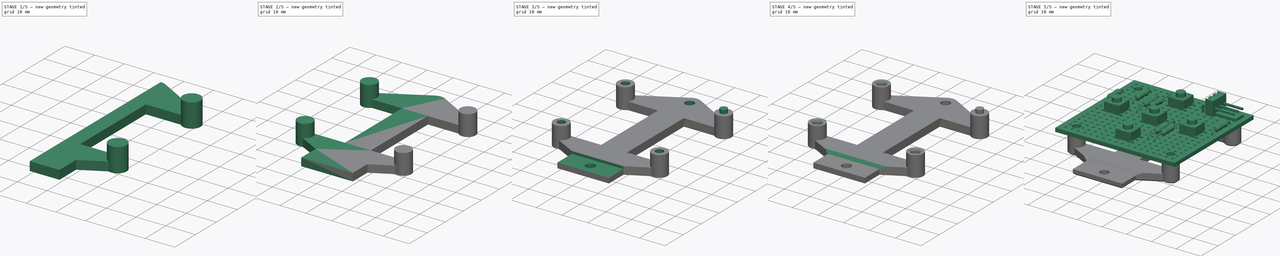
[diagram: build sequence overview — one tinted view per stage of 5, left to right]
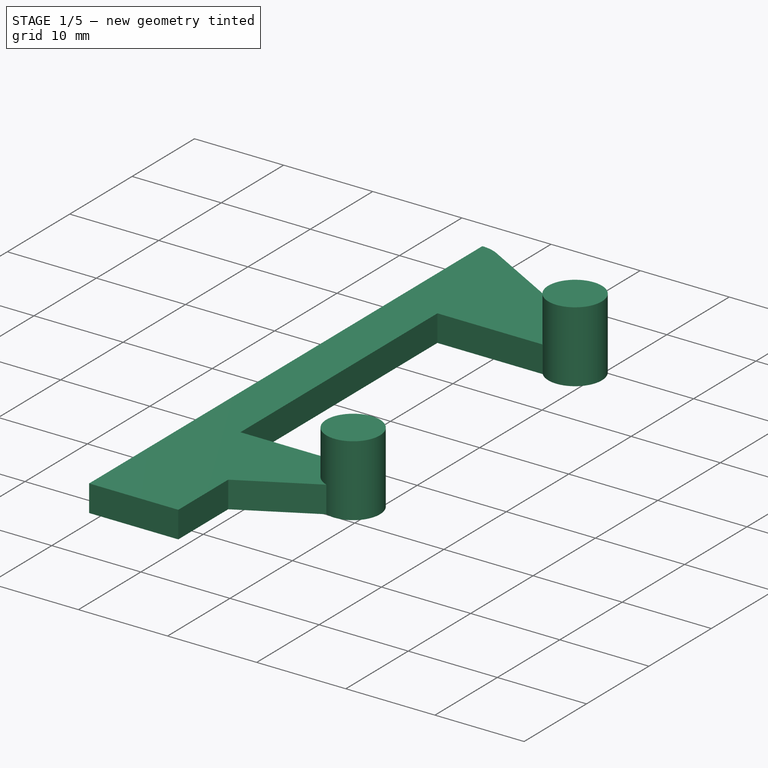
[diagram: stage 1 of 5 — iso view after this stage's code; geometry added in this stage tinted green]
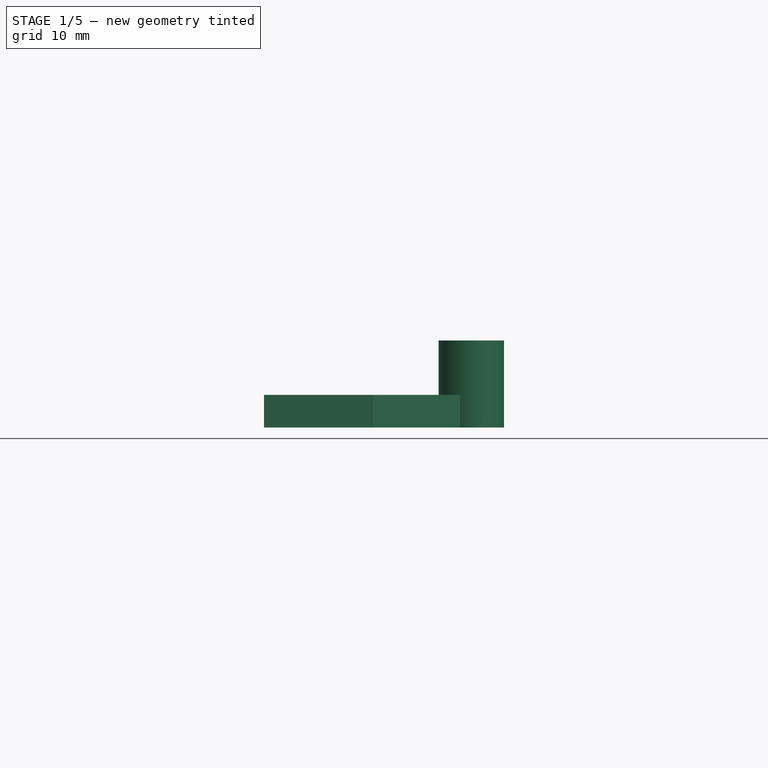
[diagram: stage 1 of 5 — front view after this stage's code; geometry added in this stage tinted green]
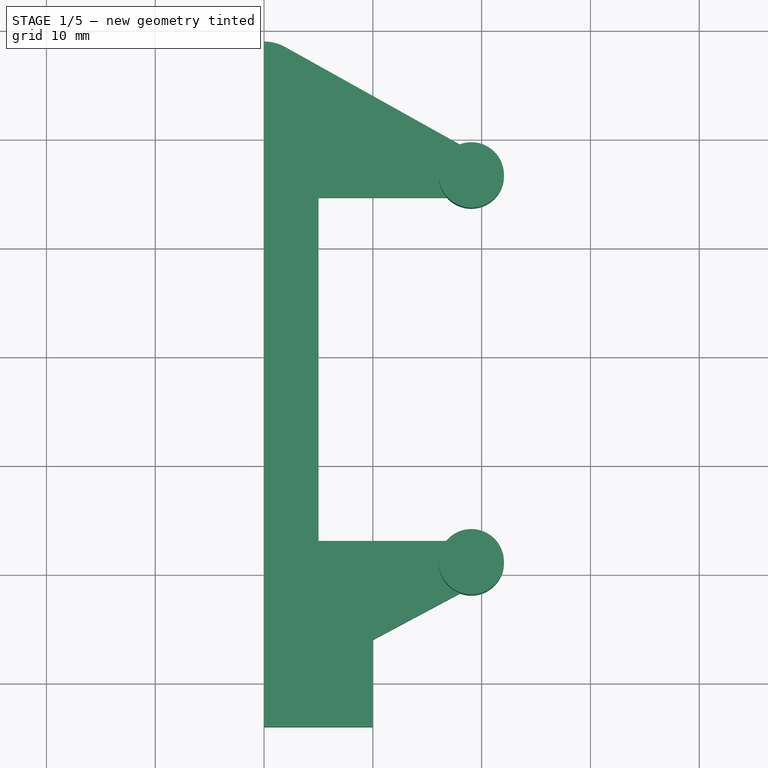
[diagram: stage 1 of 5 — top view after this stage's code; geometry added in this stage tinted green]
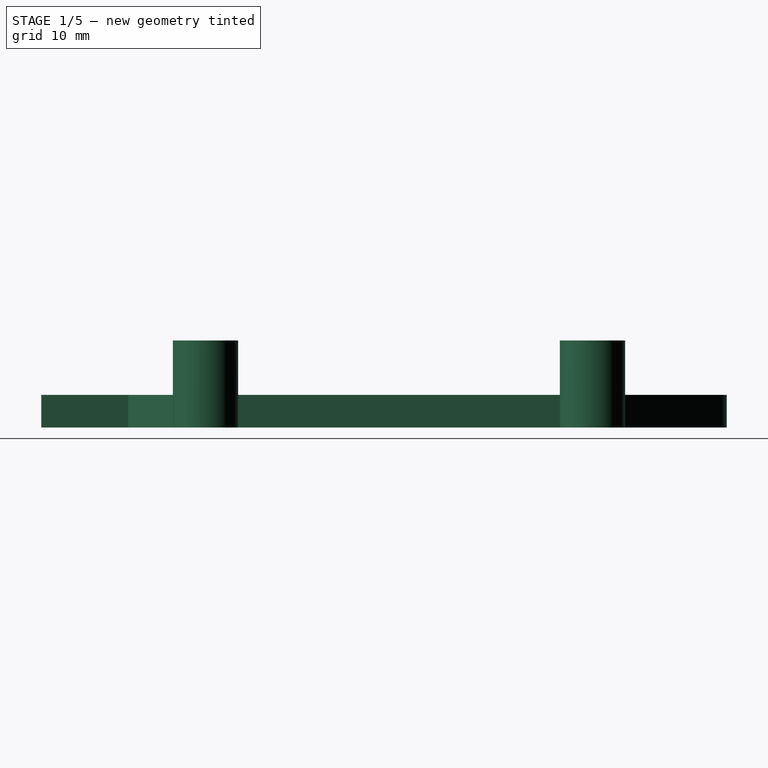
[diagram: stage 1 of 5 — right view after this stage's code; geometry added in this stage tinted green]
FCSTD DOCUMENT  (FreeCAD 0.14R3692 (Git))
Label: keypad-holder
License: The MIT License
LicenseURL: http://opensource.org/licenses/MIT
objects: Part::Feature×39, Sketcher::SketchObject×5, PartDesign::Pocket×3, PartDesign::Pad×2, Part::Cylinder×2, Part::MultiFuse×2, Part::FeaturePython×2, Part::Chamfer×2, Part::Mirroring×1, Part::Compound×1, App::DocumentObjectGroup×1, PartDesign::Draft×1
note: 65 computed .brp shape members not serialized (recipe doc carries the construction recipe); baked Part::Feature solids carry a one-line shape summary decoded from their .brp

FEATURE [Sketcher::SketchObject] Sketch  label="holder-sketch"
  sketch-geometry (16):
    g0: LineSegment [constr] StartX=10 StartY=54 StartZ=0 EndX=0 EndY=54 EndZ=0
    g1: LineSegment StartX=20.0246 StartY=48.4055 StartZ=0 EndX=1.94929 EndY=58.4929 EndZ=0
    g2: ArcOfCircle CenterX=0 CenterY=55 CenterZ=0 NormalX=0 NormalY=0 NormalZ=1 Radius=4 StartAngle=1.06178 EndAngle=1.5708
    g3: ArcOfCircle CenterX=19.05 CenterY=46.6591 CenterZ=0 NormalX=0 NormalY=0 NormalZ=1 Radius=2 StartAngle=4.71239 EndAngle=7.34496
    g4: ArcOfCircle CenterX=19.05 CenterY=11.0991 CenterZ=0 NormalX=0 NormalY=0 NormalZ=1 Radius=2 StartAngle=5.20279 EndAngle=7.85398
    g5: LineSegment StartX=19.992 StartY=9.33478 StartZ=0 EndX=10 EndY=4 EndZ=0
    g6: LineSegment StartX=10 StartY=4 StartZ=0 EndX=10 EndY=-4 EndZ=0
    g7: LineSegment StartX=10 StartY=-4 StartZ=0 EndX=0 EndY=-4 EndZ=0
    g8: LineSegment StartX=19.05 StartY=44.6591 StartZ=0 EndX=5 EndY=44.6591 EndZ=0
    g9: LineSegment StartX=5 StartY=44.6591 StartZ=0 EndX=5 EndY=13.0991 EndZ=0
    g10: LineSegment StartX=5 StartY=13.0991 StartZ=0 EndX=19.05 EndY=13.0991 EndZ=0
    g11: LineSegment [constr] StartX=-19.05 StartY=46.6591 StartZ=0 EndX=19.05 EndY=46.6591 EndZ=0
    g12: LineSegment [constr] StartX=19.05 StartY=46.6591 StartZ=0 EndX=19.05 EndY=11.0991 EndZ=0
    g13: LineSegment [constr] StartX=19.05 StartY=11.0991 StartZ=0 EndX=-19.05 EndY=11.0991 EndZ=0
    g14: LineSegment [constr] StartX=-19.05 StartY=11.0991 StartZ=0 EndX=-19.05 EndY=46.6591 EndZ=0
    g15: LineSegment StartX=0 StartY=-4 StartZ=0 EndX=0 EndY=59 EndZ=0
  constraints (49):
    c: Horizontal(g0)
    c: DistanceX(g0) = -10
    c: Tangent(g1,g2)
    c: PointOnObject(g2,g-2)
    c: Radius(g2) = 4
    c: DistanceY(g2,g0) = -1
    c: DistanceY(g-1,g2) = 55
    c: Radius(g3) = 2
    c: PointOnObject(g0,g1)
    c: Radius(g4) = 2
    c: Coincident(g5,g6)
    c: Coincident(g6,g7)
    c: Vertical(g6)
    c: Horizontal(g7)
    c: DistanceX(g7) = -10
    c: DistanceY(g-1,g6) = -4
    c: DistanceY(g6) = -8
    c: Coincident(g8,g9)
    c: Coincident(g9,g10)
    c: Coincident(g10,g4)
    c: Coincident(g5,g4)
    c: Coincident(g1,g3)
    c: Coincident(g8,g3)
    c: Tangent(g4,g10)
    c: Tangent(g4,g5)
    c: Coincident(g11,g3)
    c: Horizontal(g11)
    c: Coincident(g12,g3)
    c: Coincident(g12,g4)
    c: Vertical(g12)
    c: Coincident(g12,g13)
    c: Horizontal(g13)
    c: Coincident(g13,g14)
    c: Vertical(g14)
    c: DistanceX(g13) = -38.1
    c: DistanceY(g12) = -35.56
    c: Vertical(g9)
    c: Horizontal(g10)
    c: Horizontal(g8)
    c: Tangent(g3,g8)
    c: Tangent(g1,g3)
    c: Coincident(g11,g14)
    c: PointOnObject(g7,g-2)
    c: Coincident(g15,g7)
    c: Coincident(g15,g2)
    c: Vertical(g15)
    c: PointOnObject(g0,g-2)
    c: Symmetric(g4,g13,g-2)
    c: DistanceX(g-1,g9) = 5
FEATURE [PartDesign::Pad] Pad  label="holder-pad"
  Length = 3
  Length2 = 100
  Sketch = -> Sketch
  Type = 0
FEATURE [Part::Cylinder] Cylinder  label="front-left-cylinder"
  Angle = 360
  Height = 8
  Placement = pos=(19.05,11.0991,0) rot=(0,0,1;0rad)
  Radius = 3
FEATURE [Part::Cylinder] Cylinder003  label="rear-left-cylinder"
  Angle = 360
  Height = 8
  Placement = pos=(19.05,46.6591,0) rot=(0,0,1;0rad)
  Radius = 3
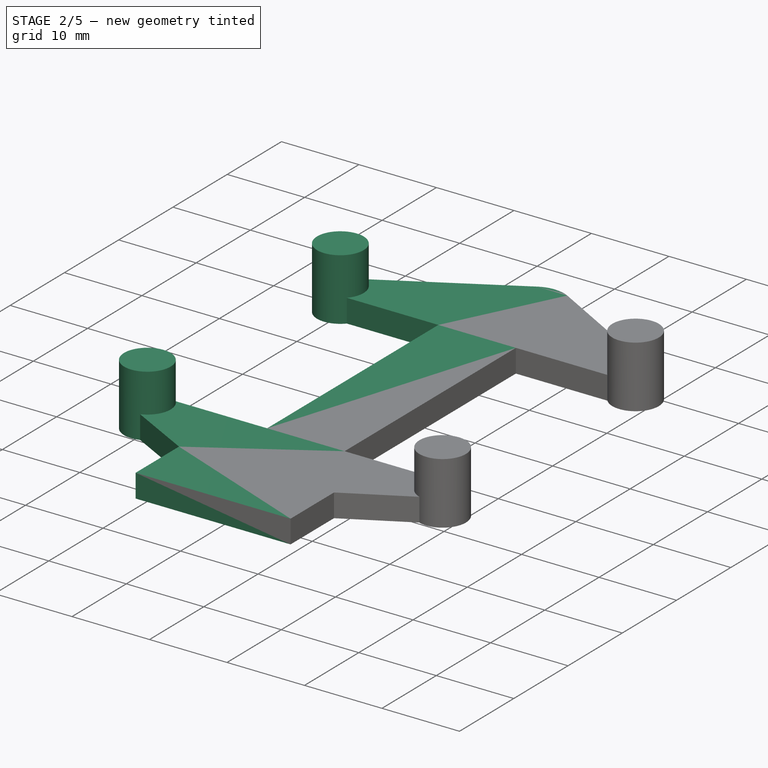
[diagram: stage 2 of 5 — iso view after this stage's code; geometry added in this stage tinted green]
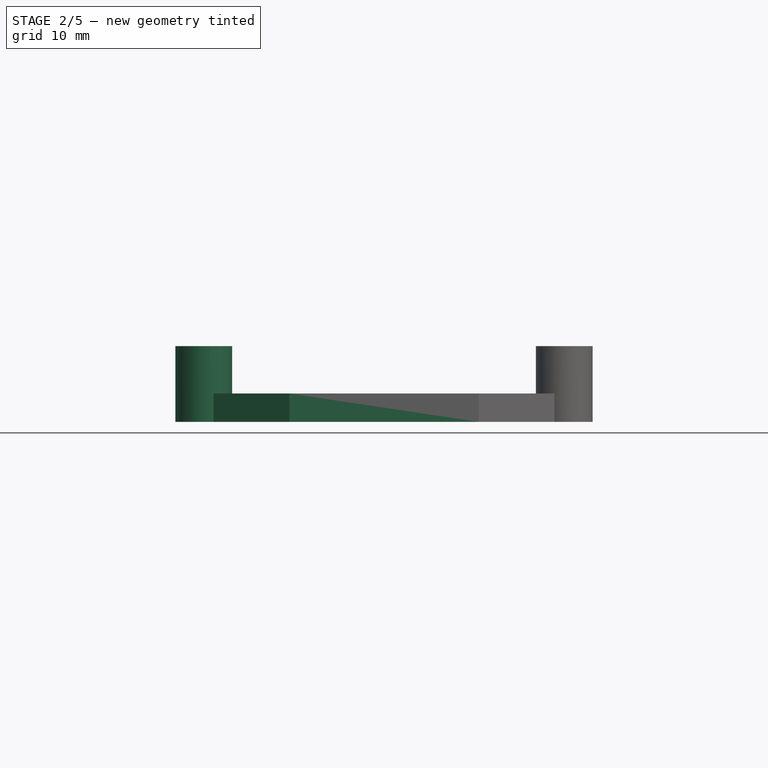
[diagram: stage 2 of 5 — front view after this stage's code; geometry added in this stage tinted green]
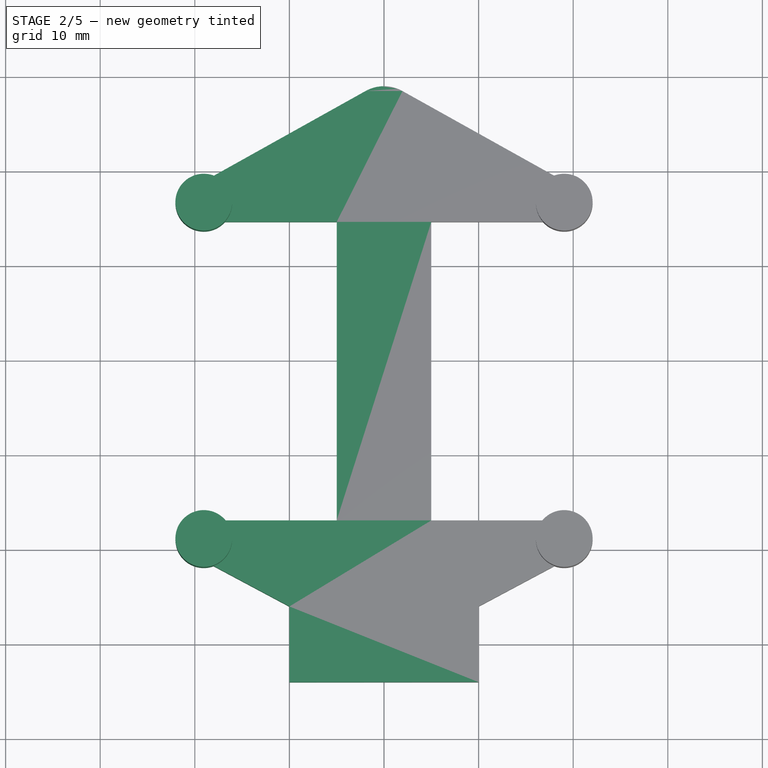
[diagram: stage 2 of 5 — top view after this stage's code; geometry added in this stage tinted green]
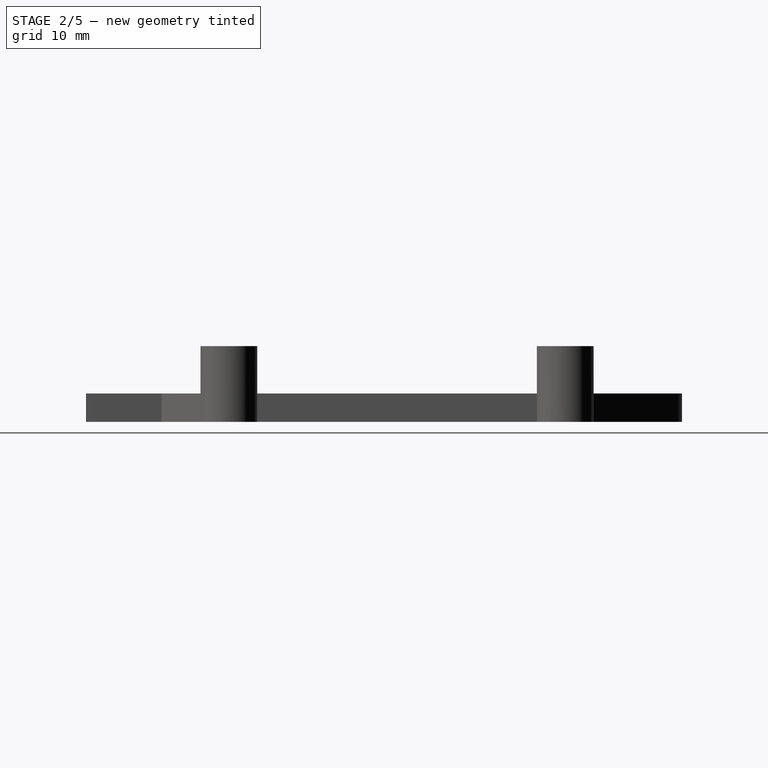
[diagram: stage 2 of 5 — right view after this stage's code; geometry added in this stage tinted green]
FEATURE [Part::MultiFuse] Fusion002  label="holder-cylinder-fusion"
  Shapes = -> [Cylinder,Cylinder003,Pad]
FEATURE [Part::Mirroring] Part__Mirroring  label="holder-cylinder-fusion-mirror"
  Base = (0,0,0)
  Normal = (1,0,0)
  Source = -> Fusion002
FEATURE [Part::MultiFuse] Fusion  label="holder-fusion"
  Shapes = -> [Part__Mirroring,Fusion002]
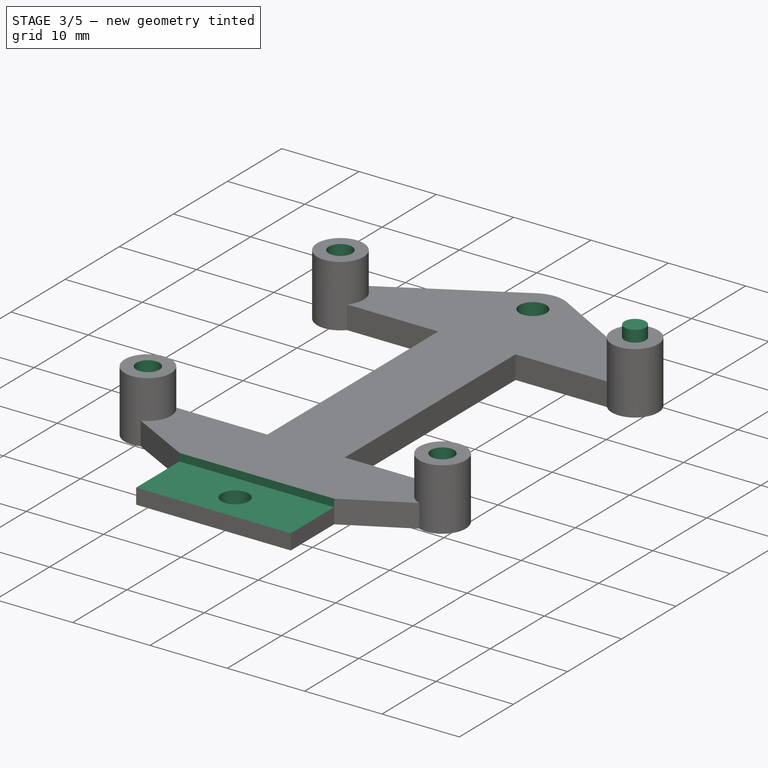
[diagram: stage 3 of 5 — iso view after this stage's code; geometry added in this stage tinted green]
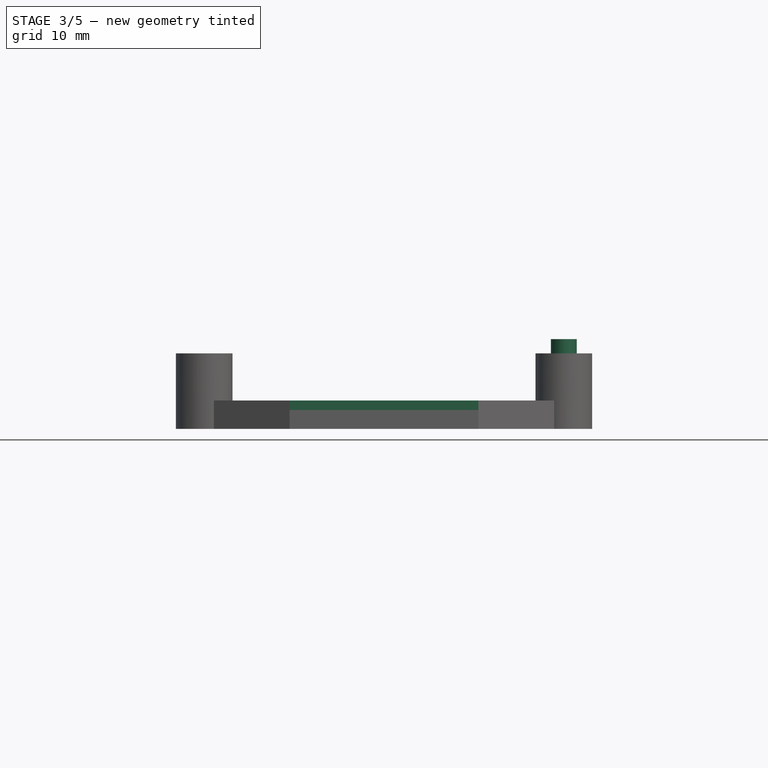
[diagram: stage 3 of 5 — front view after this stage's code; geometry added in this stage tinted green]
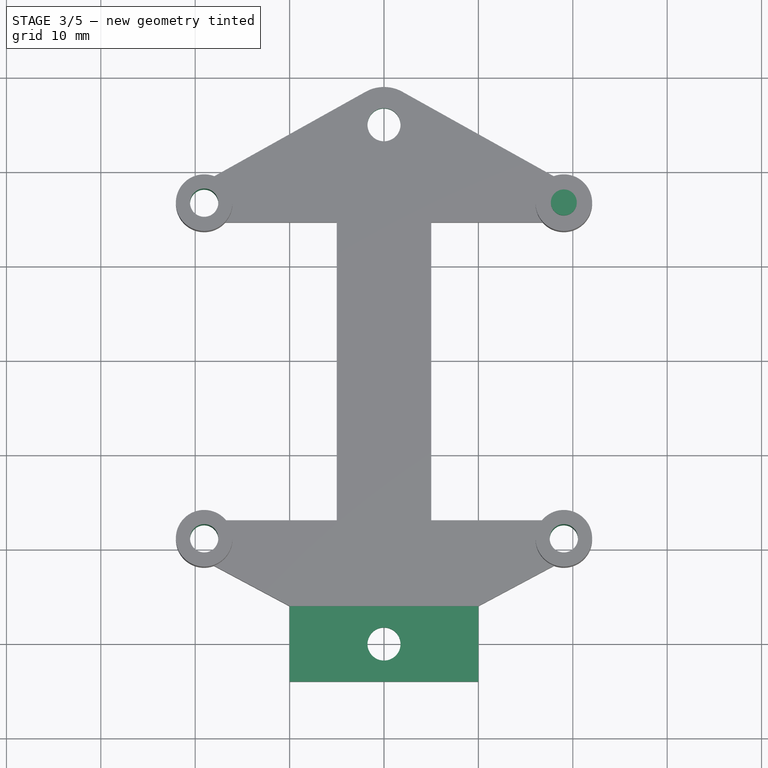
[diagram: stage 3 of 5 — top view after this stage's code; geometry added in this stage tinted green]
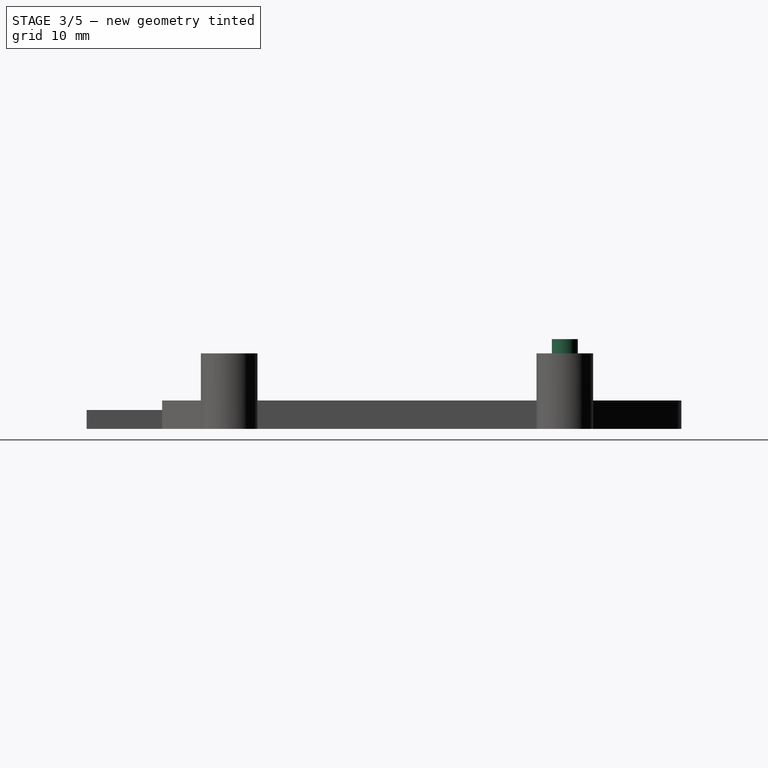
[diagram: stage 3 of 5 — right view after this stage's code; geometry added in this stage tinted green]
FEATURE [Sketcher::SketchObject] Sketch001  label="holder-screw-holes-sketch"
  Placement = pos=(0,0,0) rot=(1,0,0;3.14159rad)
  Support = -> Fusion [Face22]
  sketch-geometry (2):
    g0: Circle CenterX=0 CenterY=0 CenterZ=0 NormalX=0 NormalY=0 NormalZ=1 Radius=1.75
    g1: Circle CenterX=0 CenterY=-55 CenterZ=0 NormalX=0 NormalY=0 NormalZ=1 Radius=1.75
  constraints (5):
    c: Coincident(g0,g-1)
    c: PointOnObject(g1,g-2)
    c: Radius(g1) = 1.75
    c: Radius(g0) = 1.75
    c: DistanceY(g-1,g1) = -55
FEATURE [PartDesign::Pocket] Pocket  label="holder-screw-holes-pocket"
  Length = 5
  Sketch = -> Sketch001
  Type = 1
FEATURE [Sketcher::SketchObject] Sketch003  label="keypad-screw-holes-sketch"
  Placement = pos=(0,0,0) rot=(1,0,0;3.14159rad)
  Support = -> Pocket [Face6]
  sketch-geometry (7):
    g0: LineSegment [constr] StartX=19.05 StartY=-11.0991 StartZ=0 EndX=-19.05 EndY=-11.0991 EndZ=0
    g1: LineSegment [constr] StartX=-19.05 StartY=-11.0991 StartZ=0 EndX=-19.05 EndY=-46.6591 EndZ=0
    g2: LineSegment [constr] StartX=-19.05 StartY=-46.6591 StartZ=0 EndX=19.05 EndY=-46.6591 EndZ=0
    g3: LineSegment [constr] StartX=19.05 StartY=-46.6591 StartZ=0 EndX=19.05 EndY=-11.0991 EndZ=0
    g4: Circle CenterX=19.05 CenterY=-11.0991 CenterZ=0 NormalX=0 NormalY=0 NormalZ=1 Radius=1.5
    g5: Circle CenterX=-19.05 CenterY=-11.0991 CenterZ=0 NormalX=0 NormalY=0 NormalZ=1 Radius=1.5
    g6: Circle CenterX=-19.05 CenterY=-46.6591 CenterZ=0 NormalX=0 NormalY=0 NormalZ=1 Radius=1.5
FEATURE [PartDesign::Pocket] Pocket002  label="keypad-screw-holes-pocket"
  Length = 5
  Sketch = -> Sketch003
  Type = 1
FEATURE [Sketcher::SketchObject] Sketch004  label="keypad-screw-lock-sketch"
  Placement = pos=(0,0,8) rot=(0,0,1;0rad)
  Support = -> Pocket002 [Face29]
  sketch-geometry (1):
    g0: Circle CenterX=19.05 CenterY=46.6591 CenterZ=0 NormalX=0 NormalY=0 NormalZ=1 Radius=1.375
  constraints (1):
    c: Radius(g0) = 1.375
FEATURE [PartDesign::Pad] Pad001  label="keypad-screw-lock-pad"
  Length = 1.5
  Length2 = 100
  Sketch = -> Sketch004
  Type = 0
FEATURE [Sketcher::SketchObject] Sketch002  label="front-recess-sketch"
  Placement = pos=(0,0,3) rot=(0,0,1;0rad)
  Support = -> Pad001 [Face3]
  sketch-geometry (4):
    g0: LineSegment StartX=-10 StartY=4 StartZ=0 EndX=10 EndY=4 EndZ=0
    g1: LineSegment StartX=10 StartY=4 StartZ=0 EndX=10 EndY=-4 EndZ=0
    g2: LineSegment StartX=10 StartY=-4 StartZ=0 EndX=-10 EndY=-4 EndZ=0
    g3: LineSegment StartX=-10 StartY=-4 StartZ=0 EndX=-10 EndY=4 EndZ=0
  constraints (11):
    c: Coincident(g0,g1)
    c: Coincident(g1,g2)
    c: Coincident(g2,g3)
    c: Coincident(g3,g0)
    c: Horizontal(g0)
    c: Horizontal(g2)
    c: Vertical(g1)
    c: Vertical(g3)
    c: Symmetric(g2,g0,g-1)
    c: DistanceY(g1) = -8
    c: DistanceX(g2) = -20
FEATURE [PartDesign::Pocket] Pocket001  label="front-recess-pocket"
  Length = 1
  Sketch = -> Sketch002
  Type = 0
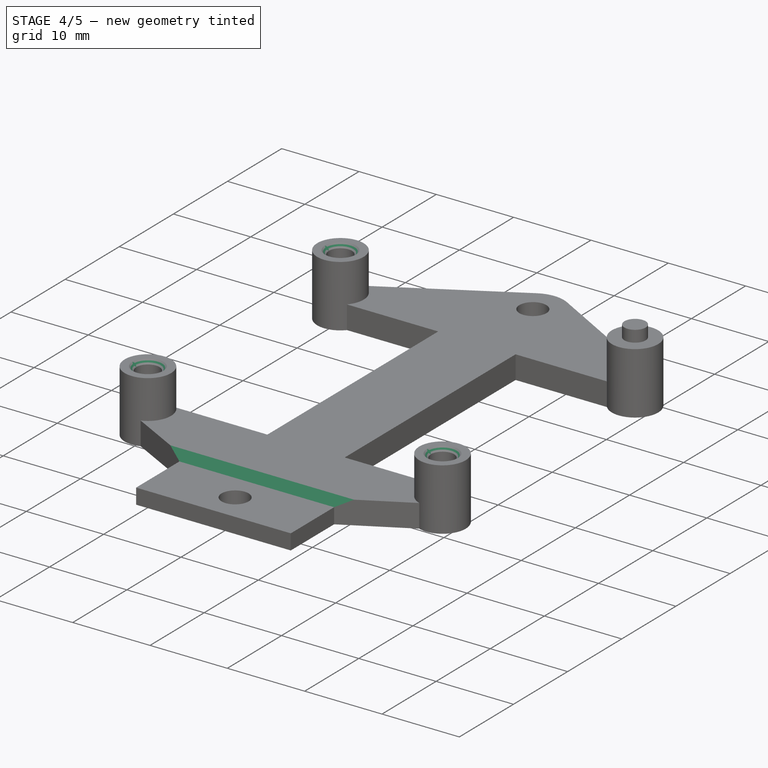
[diagram: stage 4 of 5 — iso view after this stage's code; geometry added in this stage tinted green]
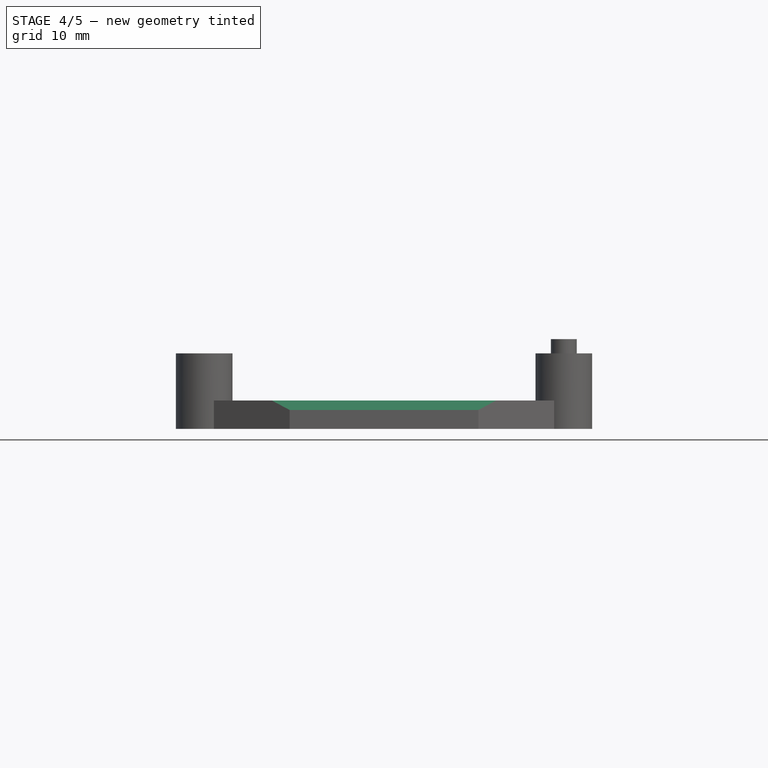
[diagram: stage 4 of 5 — front view after this stage's code; geometry added in this stage tinted green]
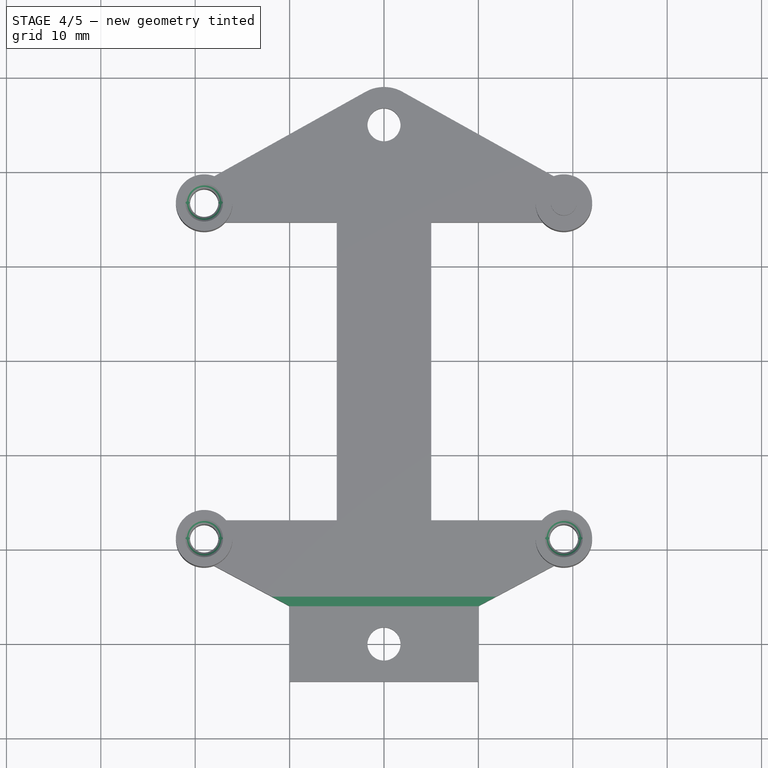
[diagram: stage 4 of 5 — top view after this stage's code; geometry added in this stage tinted green]
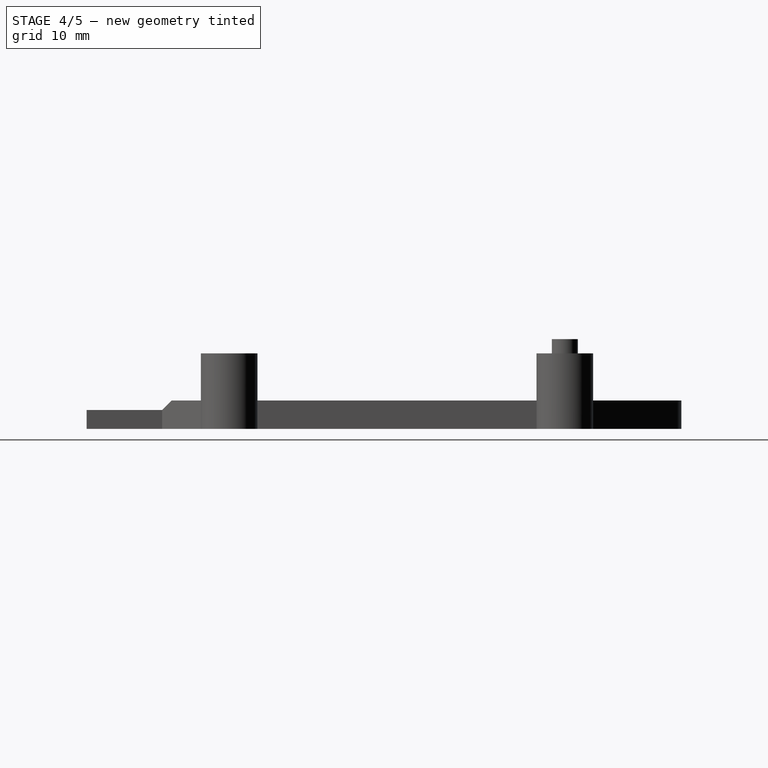
[diagram: stage 4 of 5 — right view after this stage's code; geometry added in this stage tinted green]
FEATURE [App::DocumentObjectGroup] Group  label="components"
  Group = -> [Compound]
FEATURE [PartDesign::Draft] Draft  label="front-recess-draft"
  Angle = 45
  Base = -> Pocket001 [Face8]
  NeutralPlane = -> Pocket001 [Face28]
FEATURE [Part::FeaturePython] Clone  label="keypad-holder"  # Draft clone (typed FeaturePython)
  Objects = -> [Draft]
  Scale = (1,1,1)
FEATURE [Part::Chamfer] Chamfer  label="screw-chamfer"
  Base = -> Clone
  Edges = 6 edges r=0.5: [Edge59,Edge60,Edge91,Edge92,Edge95,Edge96]
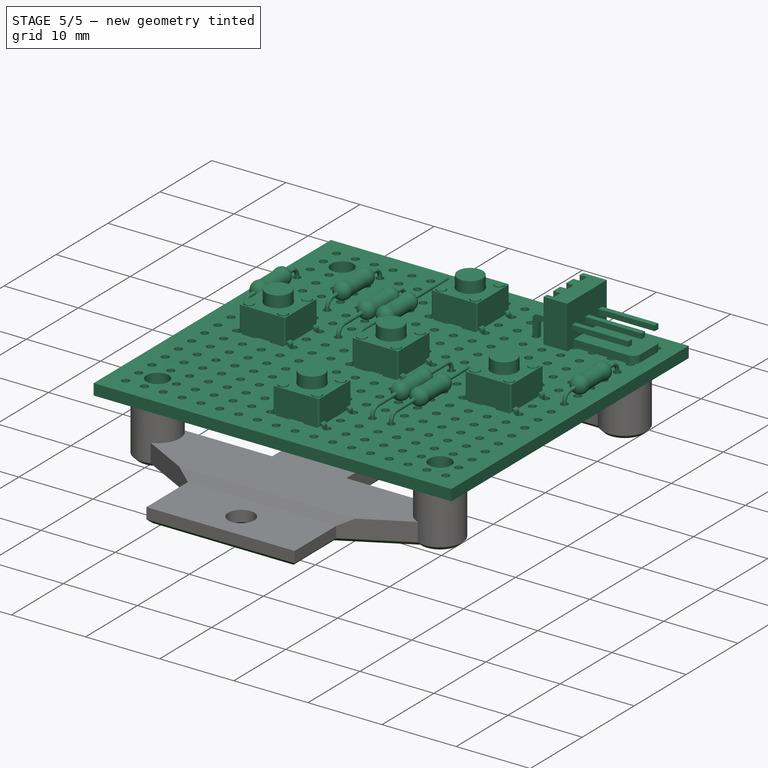
[diagram: stage 5 of 5 — iso view after this stage's code; geometry added in this stage tinted green]
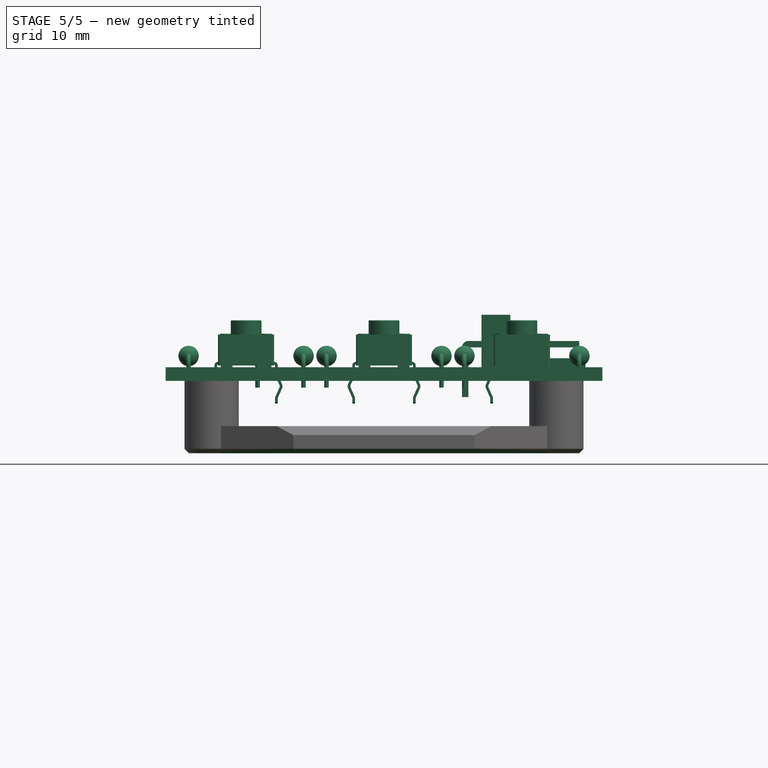
[diagram: stage 5 of 5 — front view after this stage's code; geometry added in this stage tinted green]
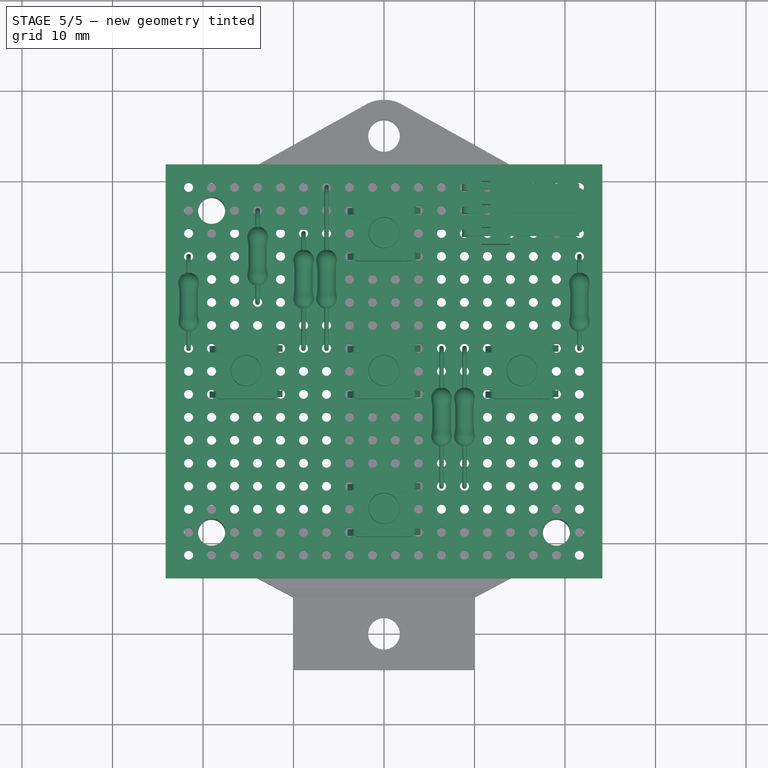
[diagram: stage 5 of 5 — top view after this stage's code; geometry added in this stage tinted green]
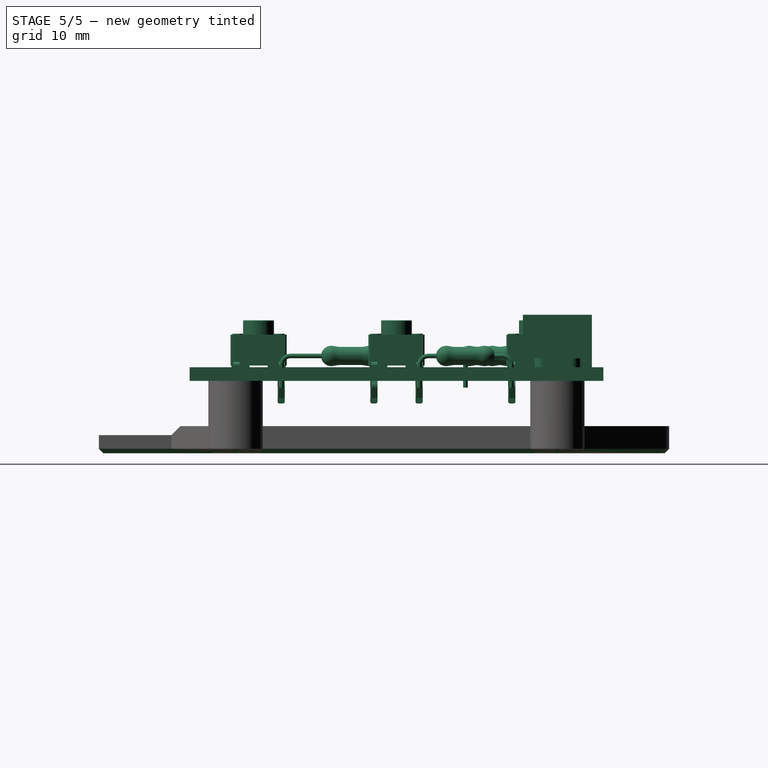
[diagram: stage 5 of 5 — right view after this stage's code; geometry added in this stage tinted green]
FEATURE [Part::Feature] Part__Feature  label="R1"
  shape: bbox 2.25 x 18.49 x 4.625 mm, 14 faces (baked)
FEATURE [Part::Feature] Part__Feature001  label="R2"
  shape: bbox 2.25 x 15.95 x 4.625 mm, 14 faces (baked)
FEATURE [Part::Feature] Part__Feature002  label="R3"
  shape: bbox 2.25 x 15.95 x 4.625 mm, 14 faces (baked)
FEATURE [Part::Feature] Part__Feature003  label="R4"
  shape: bbox 2.25 x 10.87 x 4.625 mm, 14 faces (baked)
FEATURE [Part::Feature] Part__Feature004  label="R5"
  shape: bbox 2.25 x 10.87 x 4.625 mm, 14 faces (baked)
FEATURE [Part::Feature] Part__Feature005  label="R6"
  shape: bbox 2.25 x 13.41 x 4.625 mm, 14 faces (baked)
FEATURE [Part::Feature] Part__Feature006  label="R7"
  shape: bbox 2.25 x 10.87 x 4.625 mm, 14 faces (baked)
FEATURE [Part::Feature] Part__Feature007  label="connector"
  shape: bbox 13.65 x 7.62 x 9.1 mm, 63 faces (baked)
FEATURE [Part::Feature] Part__Feature008  label="pushbutton-mini-001"
  shape: bbox 6.2 x 6.2 x 5.2 mm, 41 faces (baked)
FEATURE [Part::Feature] Part__Feature009  label="pushbutton-mini-002"
  shape: bbox 0.922 x 0.7 x 4.6 mm, 20 faces (baked)
FEATURE [Part::Feature] Part__Feature010  label="pushbutton-mini-003"
  shape: bbox 0.922 x 0.7 x 4.6 mm, 20 faces (baked)
FEATURE [Part::Feature] Part__Feature011  label="pushbutton-mini-004"
  shape: bbox 0.922 x 0.7 x 4.6 mm, 20 faces (baked)
FEATURE [Part::Feature] Part__Feature012  label="pushbutton-mini-005"
  shape: bbox 0.922 x 0.7 x 4.6 mm, 20 faces (baked)
FEATURE [Part::Feature] Part__Feature013  label="pushbutton-mini-006"
  shape: bbox 6.2 x 6.2 x 0.2 mm, 15 faces (baked)
FEATURE [Part::Feature] Part__Feature014  label="pushbutton-mini-007"
  shape: bbox 6.2 x 6.2 x 5.2 mm, 41 faces (baked)
FEATURE [Part::Feature] Part__Feature015  label="pushbutton-mini-008"
  shape: bbox 0.922 x 0.7 x 4.6 mm, 20 faces (baked)
FEATURE [Part::Feature] Part__Feature016  label="pushbutton-mini-009"
  shape: bbox 0.922 x 0.7 x 4.6 mm, 20 faces (baked)
FEATURE [Part::Feature] Part__Feature017  label="pushbutton-mini-010"
  shape: bbox 0.922 x 0.7 x 4.6 mm, 20 faces (baked)
FEATURE [Part::Feature] Part__Feature018  label="pushbutton-mini-011"
  shape: bbox 0.922 x 0.7 x 4.6 mm, 20 faces (baked)
FEATURE [Part::Feature] Part__Feature019  label="pushbutton-mini-012"
  shape: bbox 6.2 x 6.2 x 0.2 mm, 15 faces (baked)
FEATURE [Part::Feature] Part__Feature020  label="pushbutton-mini-013"
  shape: bbox 6.2 x 6.2 x 5.2 mm, 41 faces (baked)
FEATURE [Part::Feature] Part__Feature021  label="pushbutton-mini-014"
  shape: bbox 0.922 x 0.7 x 4.6 mm, 20 faces (baked)
FEATURE [Part::Feature] Part__Feature022  label="pushbutton-mini-015"
  shape: bbox 0.922 x 0.7 x 4.6 mm, 20 faces (baked)
FEATURE [Part::Feature] Part__Feature023  label="pushbutton-mini-016"
  shape: bbox 0.922 x 0.7 x 4.6 mm, 20 faces (baked)
FEATURE [Part::Feature] Part__Feature024  label="pushbutton-mini-017"
  shape: bbox 0.922 x 0.7 x 4.6 mm, 20 faces (baked)
FEATURE [Part::Feature] Part__Feature025  label="pushbutton-mini-018"
  shape: bbox 6.2 x 6.2 x 0.2 mm, 15 faces (baked)
FEATURE [Part::Feature] Part__Feature026  label="pushbutton-mini-019"
  shape: bbox 6.2 x 6.2 x 5.2 mm, 41 faces (baked)
FEATURE [Part::Feature] Part__Feature027  label="pushbutton-mini-020"
  shape: bbox 0.922 x 0.7 x 4.6 mm, 20 faces (baked)
FEATURE [Part::Feature] Part__Feature028  label="pushbutton-mini-021"
  shape: bbox 0.922 x 0.7 x 4.6 mm, 20 faces (baked)
FEATURE [Part::Feature] Part__Feature029  label="pushbutton-mini-022"
  shape: bbox 0.922 x 0.7 x 4.6 mm, 20 faces (baked)
FEATURE [Part::Feature] Part__Feature030  label="pushbutton-mini-023"
  shape: bbox 0.922 x 0.7 x 4.6 mm, 20 faces (baked)
FEATURE [Part::Feature] Part__Feature031  label="pushbutton-mini-024"
  shape: bbox 6.2 x 6.2 x 0.2 mm, 15 faces (baked)
FEATURE [Part::Feature] Part__Feature032  label="pushbutton-mini-025"
  shape: bbox 6.2 x 6.2 x 5.2 mm, 41 faces (baked)
FEATURE [Part::Feature] Part__Feature033  label="pushbutton-mini-026"
  shape: bbox 0.922 x 0.7 x 4.6 mm, 20 faces (baked)
FEATURE [Part::Feature] Part__Feature034  label="pushbutton-mini-027"
  shape: bbox 0.922 x 0.7 x 4.6 mm, 20 faces (baked)
FEATURE [Part::Feature] Part__Feature035  label="pushbutton-mini-028"
  shape: bbox 0.922 x 0.7 x 4.6 mm, 20 faces (baked)
FEATURE [Part::Feature] Part__Feature036  label="pushbutton-mini-029"
  shape: bbox 0.922 x 0.7 x 4.6 mm, 20 faces (baked)
FEATURE [Part::Feature] Part__Feature037  label="pushbutton-mini-030"
  shape: bbox 6.2 x 6.2 x 0.2 mm, 15 faces (baked)
FEATURE [Part::Feature] Part__Feature038  label="perfboard"
  shape: bbox 48.26 x 45.72 x 1.5 mm, 312 faces (baked)
FEATURE [Part::Compound] Compound  label="keypad"
  Links = -> [Part__Feature,Part__Feature008,Part__Feature020,Part__Feature016,Part__Feature025,Part__Feature006,Part__Feature018,Part__Feature011,Part__Feature030,Part__Feature032,Part__Feature035,Part__Feature028,Part__Feature013,Part__Feature010,Part__Feature004,Part__Feature031,Part__Feature026,Part__Feature017,Part__Feature005,Part__Feature038,Part__Feature036,Part__Feature015,Part__Feature009,+16 more]
  Placement = pos=(19.05,46.6591,8) rot=(0,0,1;3.14159rad)
FEATURE [Part::Chamfer] Chamfer001  label="printing-chamfer"
  Base = -> Chamfer
  Edges = 28 edges r=0.5: [Edge12,Edge14,Edge16,Edge17,Edge42,Edge43,Edge44,Edge45,Edge46,Edge47,Edge48,Edge49,Edge50,Edge51,Edge52,Edge53,Edge54,Edge55,Edge56,Edge57,Edge58,Edge59,Edge60,Edge61,Edge62,Edge63,Edge64,Edge65]
FEATURE [Part::FeaturePython] Clone001  label="keypad-holder (printing)"  # Draft clone (typed FeaturePython)
  Objects = -> [Chamfer001]
  Scale = (1,1,1)
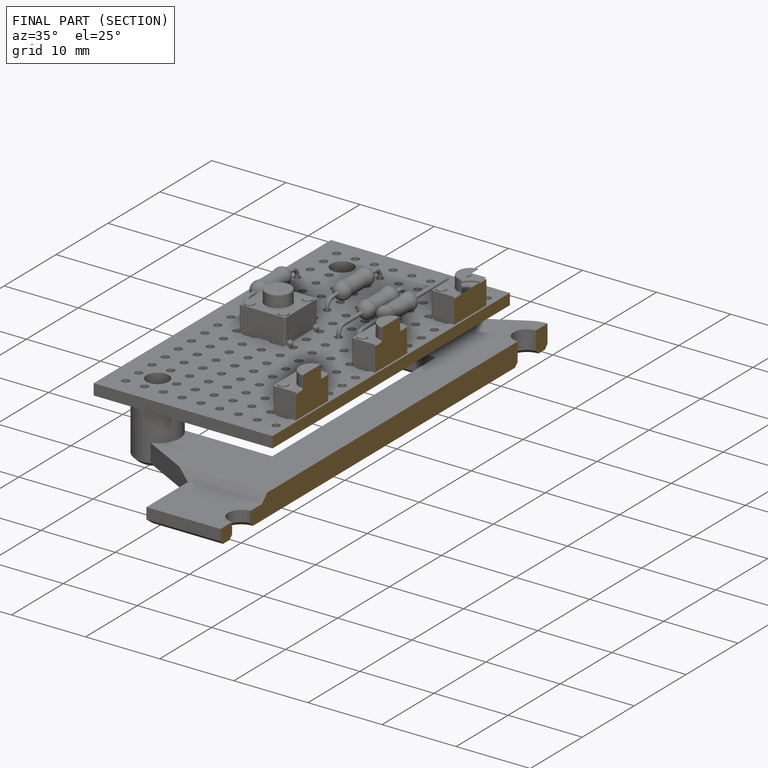
[diagram: finished part — half-section view (interior)]
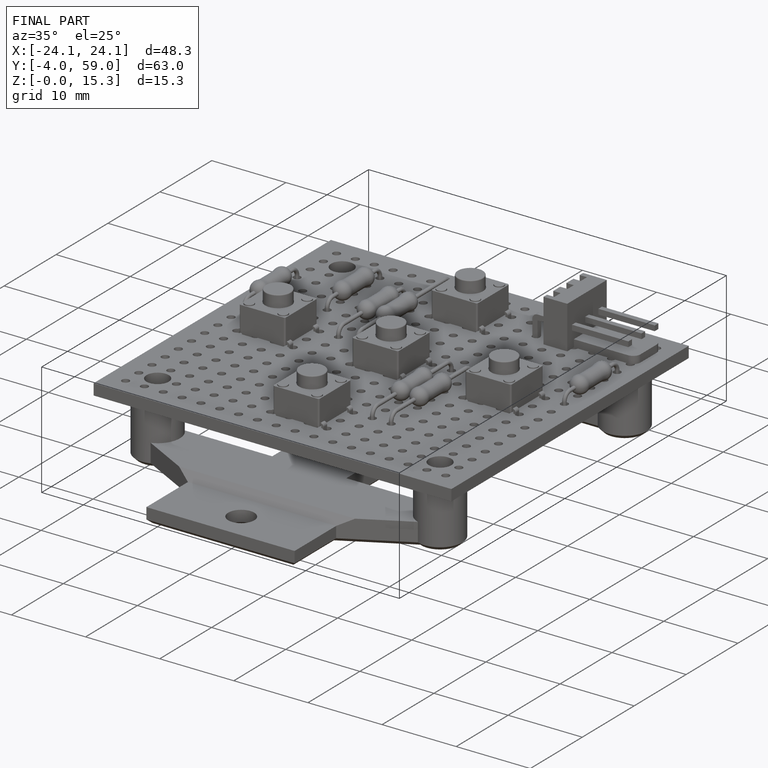
[diagram: finished part — iso view with bounding-box wireframe]
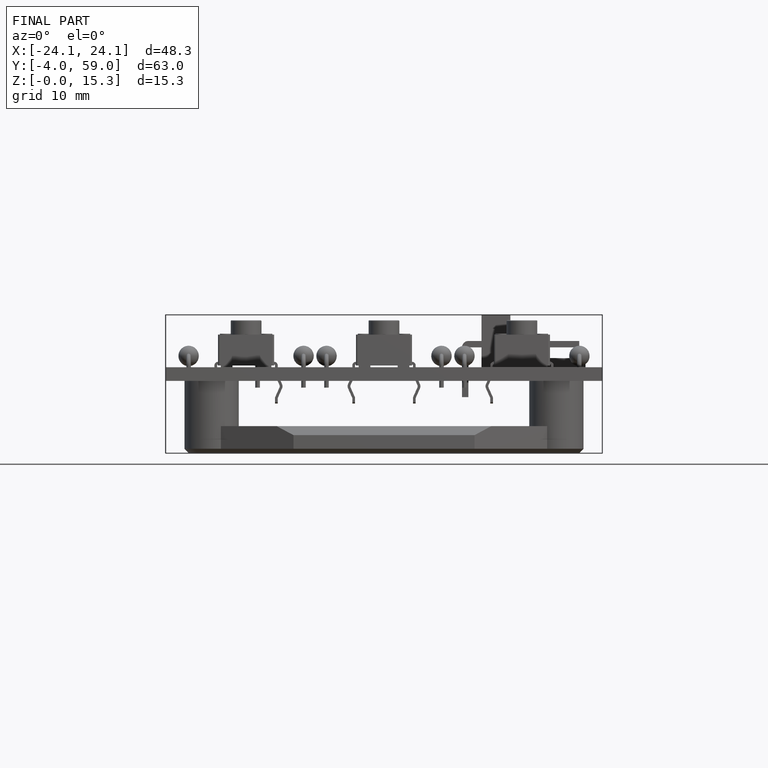
[diagram: finished part — front view with bounding-box wireframe]
